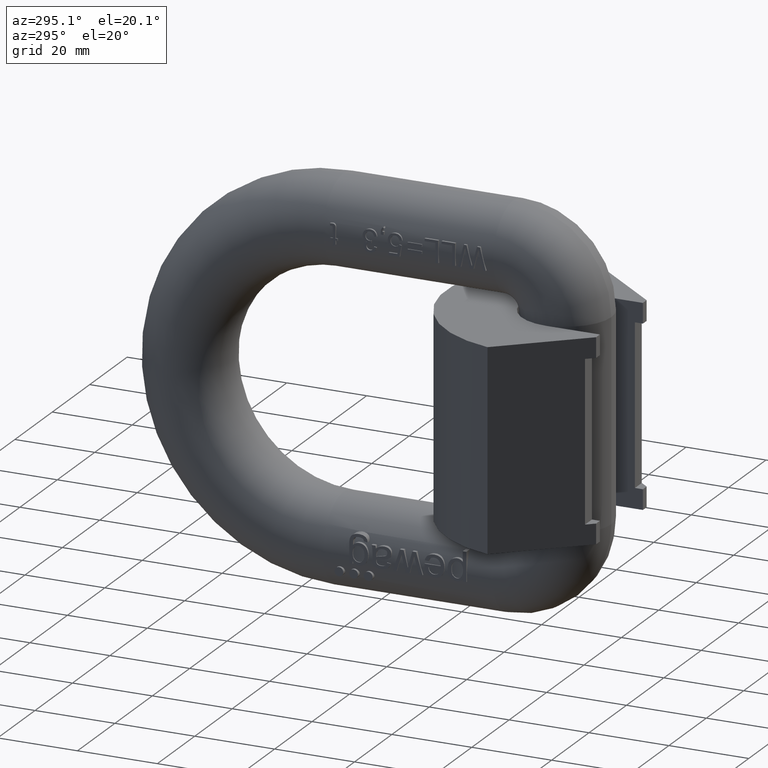
[diagram: clean part render]
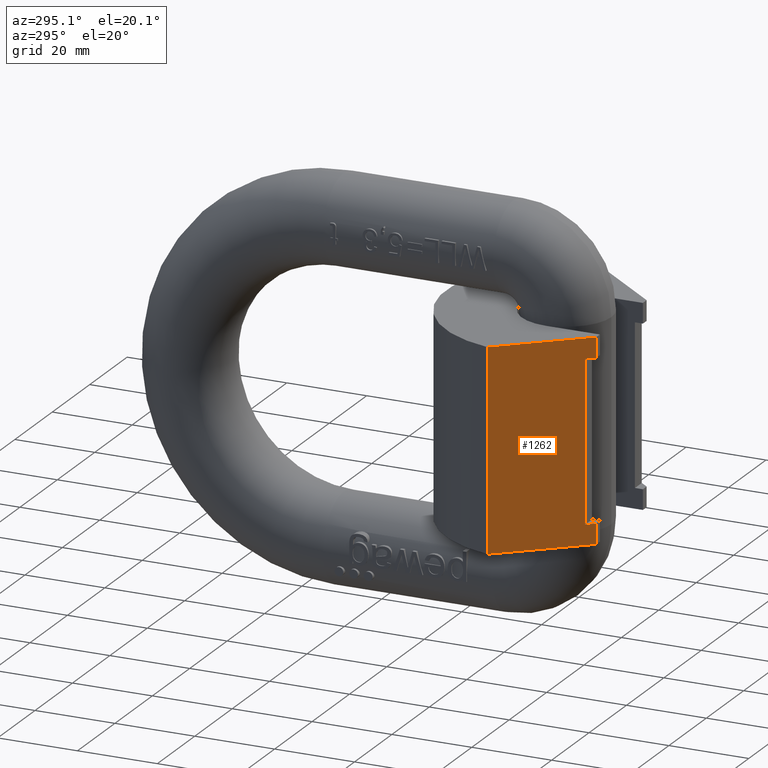
[diagram: same view with one face highlighted and labeled with its STEP entity id]
A machine part, auxiliary view. The second image highlights one B-rep face of the part: STEP entity #1262.
In plain terms, the highlighted planar face has unit normal (-0.766, -0.6428, 0).
Its self-contained STEP definition (entity closure, byte-faithful):
#1044=PLANE('',#7612);
#1262=ADVANCED_FACE('',(#1689),#1044,.T.);
#1689=FACE_OUTER_BOUND('',#2077,.T.);
#2077=EDGE_LOOP('',(#2668,#2669,#2670,#2671,#2672,#2673,#2674,#2675));
#2668=ORIENTED_EDGE('',*,*,#5454,.T.);
#2669=ORIENTED_EDGE('',*,*,#5450,.T.);
#2670=ORIENTED_EDGE('',*,*,#5462,.F.);
#2671=ORIENTED_EDGE('',*,*,#5492,.F.);
#2672=ORIENTED_EDGE('',*,*,#5475,.F.);
#2673=ORIENTED_EDGE('',*,*,#5469,.F.);
#2674=ORIENTED_EDGE('',*,*,#5472,.T.);
#2675=ORIENTED_EDGE('',*,*,#5494,.F.);
#4728=VERTEX_POINT('',#9269);
#4729=VERTEX_POINT('',#9270);
#4732=VERTEX_POINT('',#9278);
#4738=VERTEX_POINT('',#9292);
#4744=VERTEX_POINT('',#9306);
#4746=VERTEX_POINT('',#9309);
#4748=VERTEX_POINT('',#9315);
#4750=VERTEX_POINT('',#9321);
#5450=EDGE_CURVE('',#4728,#4729,#6524,.T.);
#5454=EDGE_CURVE('',#4732,#4728,#6526,.T.);
#5462=EDGE_CURVE('',#4738,#4729,#6533,.T.);
#5469=EDGE_CURVE('',#4744,#4746,#6539,.T.);
#5472=EDGE_CURVE('',#4744,#4748,#6542,.T.);
#5475=EDGE_CURVE('',#4746,#4750,#6545,.T.);
#5492=EDGE_CURVE('',#4750,#4738,#6562,.T.);
#5494=EDGE_CURVE('',#4732,#4748,#6564,.T.);
#6524=LINE('',#9268,#6972);
#6526=LINE('',#9277,#6974);
#6533=LINE('',#9294,#6981);
#6539=LINE('',#9308,#6987);
#6542=LINE('',#9314,#6990);
#6545=LINE('',#9320,#6993);
#6562=LINE('',#9353,#7010);
#6564=LINE('',#9356,#7012);
#6972=VECTOR('',#7945,1.);
#6974=VECTOR('',#7953,1.);
#6981=VECTOR('',#7964,1.);
#6987=VECTOR('',#7974,1.);
#6990=VECTOR('',#7979,1.);
#6993=VECTOR('',#7984,1.);
#7010=VECTOR('',#8013,1.);
#7012=VECTOR('',#8017,1.);
#7612=AXIS2_PLACEMENT_3D('',#9365,#8031,#8032);
#7945=DIRECTION('',(0.,0.,-1.));
#7953=DIRECTION('',(-0.64278760968654,0.766044443118978,0.));
#7964=DIRECTION('',(-0.64278760968654,0.766044443118978,0.));
#7974=DIRECTION('',(0.,0.,-1.));
#7979=DIRECTION('',(0.64278760968654,-0.766044443118978,0.));
#7984=DIRECTION('',(0.64278760968654,-0.766044443118978,0.));
#8013=DIRECTION('',(0.,0.,-1.));
#8017=DIRECTION('',(0.,0.,-1.));
#8031=DIRECTION('',(-0.766044443118978,-0.642787609686539,0.));
#8032=DIRECTION('',(0.64278760968654,-0.766044443118978,0.));
#9268=CARTESIAN_POINT('',(-29.8959687524467,19.5399546647908,25.));
#9269=CARTESIAN_POINT('',(-29.8959687524467,19.5399546647908,25.));
#9270=CARTESIAN_POINT('',(-29.8959687524467,19.5399546647908,-25.));
#9277=CARTESIAN_POINT('',(-14.5695775320842,1.27467286641937,25.));
#9278=CARTESIAN_POINT('',(-13.5,0.,25.));
#9292=CARTESIAN_POINT('',(-13.5,0.,-25.));
#9294=CARTESIAN_POINT('',(-14.5695775320842,1.27467286641937,-25.));
#9306=CARTESIAN_POINT('',(-15.1781992623545,1.99999999999998,20.));
#9308=CARTESIAN_POINT('',(-15.1781992623545,1.99999999999998,20.));
#9309=CARTESIAN_POINT('',(-15.1781992623545,1.99999999999998,-20.));
#9314=CARTESIAN_POINT('',(-7.92212519925178,-6.6474523328324,20.));
#9315=CARTESIAN_POINT('',(-13.5,0.,20.));
#9320=CARTESIAN_POINT('',(-7.92212519925178,-6.6474523328324,-20.));
#9321=CARTESIAN_POINT('',(-13.5,4.36438796952158E-15,-20.));
#9353=CARTESIAN_POINT('',(-13.5,0.,27.5000275));
#9356=CARTESIAN_POINT('',(-13.5,0.,27.5000275));
#9365=CARTESIAN_POINT('',(-13.5,0.,27.5000275));